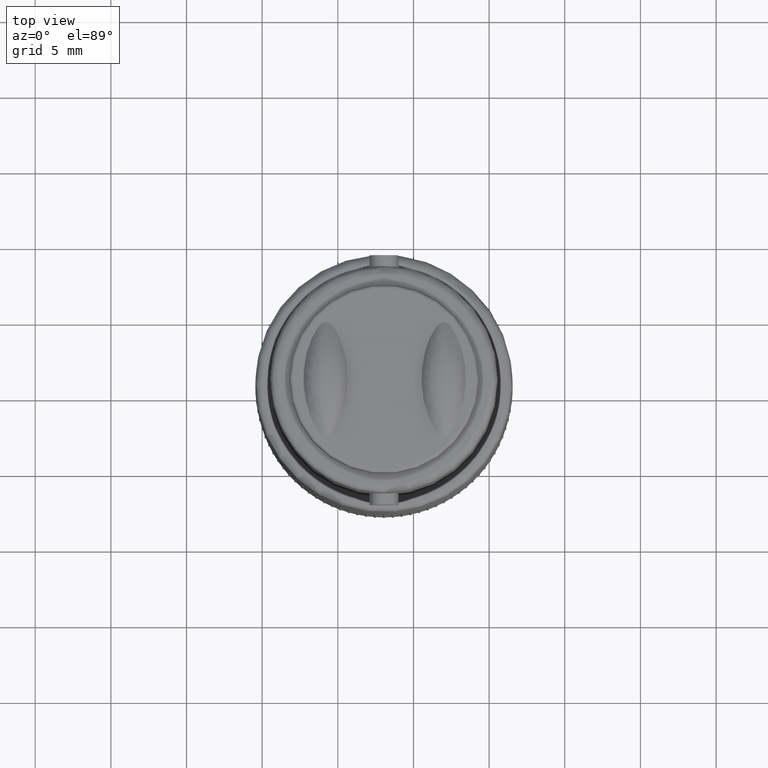
[diagram: clean part render]
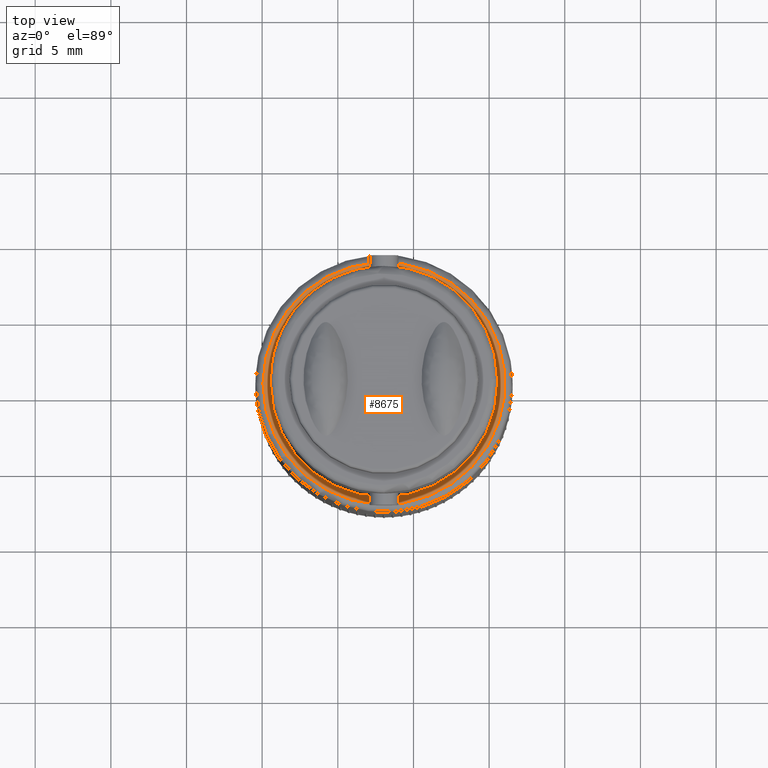
[diagram: same view with one face highlighted and labeled with its STEP entity id]
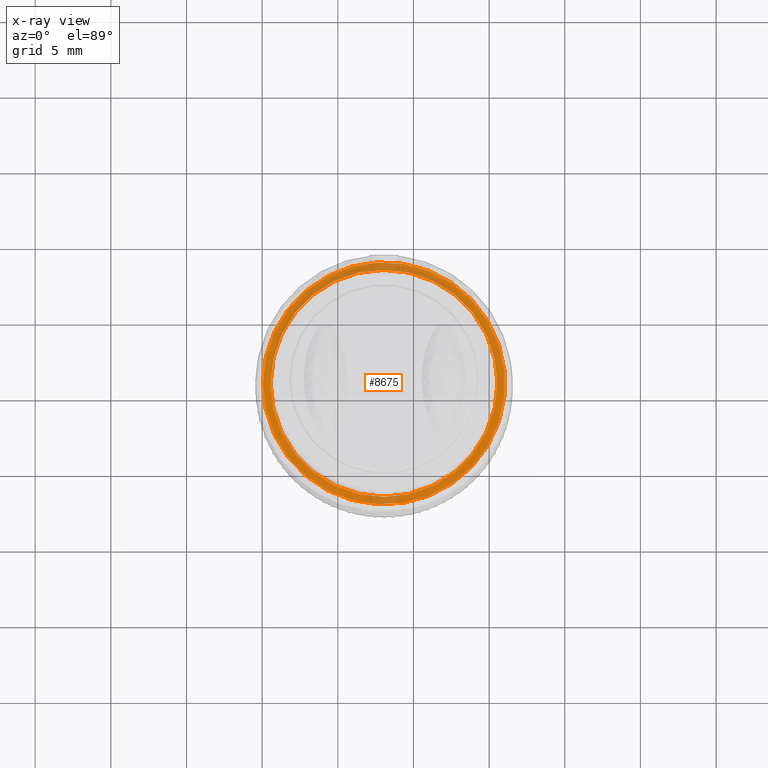
[diagram: x-ray of the same camera — body ghosted, the highlighted face saturated]
A machine part, top view. The second image highlights one B-rep face of the part: STEP entity #8675.
The next image is the same camera in x-ray: the body ghosted, the highlighted face saturated — about 23% of this face is hidden behind the body in this view.
In plain terms, the highlighted planar face has unit normal (0, 0, 1).
Its self-contained STEP definition (entity closure, byte-faithful):
#8644=CARTESIAN_POINT('',(-19.947431124239415,5.734766993235530,0.0));
#8645=VERTEX_POINT('',#8644);
#8646=CARTESIAN_POINT('',(-11.947431124239413,5.734766993235528,0.0));
#8647=DIRECTION('',(0.0,0.0,-1.0));
#8648=DIRECTION('',(1.0,0.0,0.0));
#8649=AXIS2_PLACEMENT_3D('',#8646,#8647,#8648);
#8650=CIRCLE('',#8649,8.0);
#8651=EDGE_CURVE('',#8645,#8645,#8650,.T.);
#8656=CARTESIAN_POINT('',(-11.947431124239413,5.734766993235528,0.0));
#8657=DIRECTION('',(0.0,0.0,1.0));
#8658=DIRECTION('',(1.0,0.0,0.0));
#8659=AXIS2_PLACEMENT_3D('',#8656,#8657,#8658);
#8660=PLANE('',#8659);
#8661=ORIENTED_EDGE('',*,*,#8651,.F.);
#8662=EDGE_LOOP('',(#8661));
#8663=FACE_OUTER_BOUND('',#8662,.T.);
#8664=CARTESIAN_POINT('',(-4.447431124239413,5.734766993235530,0.0));
#8665=VERTEX_POINT('',#8664);
#8666=CARTESIAN_POINT('',(-11.947431124239413,5.734766993235528,0.0));
#8667=DIRECTION('',(0.0,0.0,-1.0));
#8668=DIRECTION('',(-1.0,0.0,0.0));
#8669=AXIS2_PLACEMENT_3D('',#8666,#8667,#8668);
#8670=CIRCLE('',#8669,7.500000000000000);
#8671=EDGE_CURVE('',#8665,#8665,#8670,.T.);
#8672=ORIENTED_EDGE('',*,*,#8671,.T.);
#8673=EDGE_LOOP('',(#8672));
#8674=FACE_BOUND('',#8673,.T.);
#8675=ADVANCED_FACE('',(#8663,#8674),#8660,.T.);